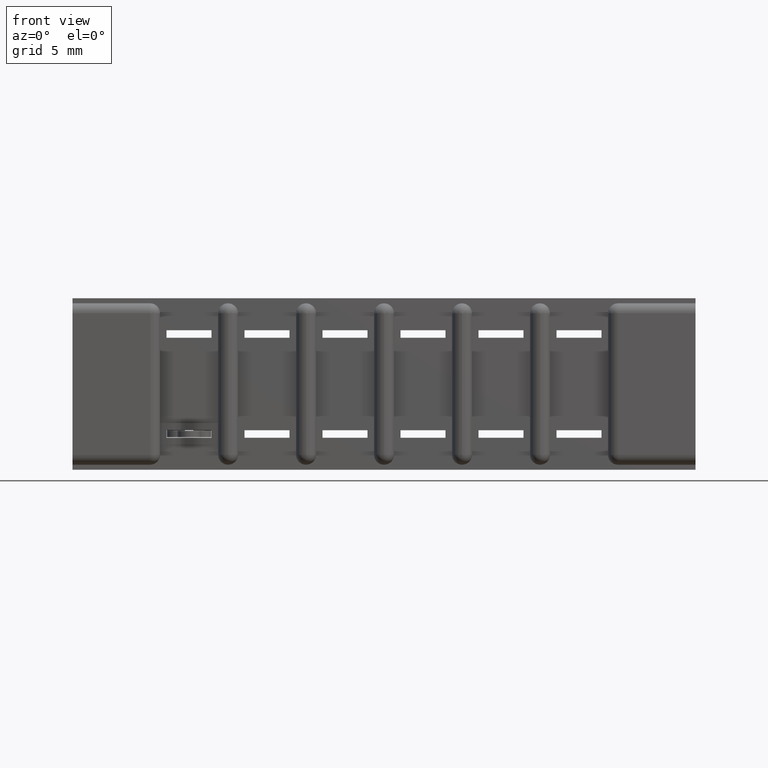
[diagram: clean part render]
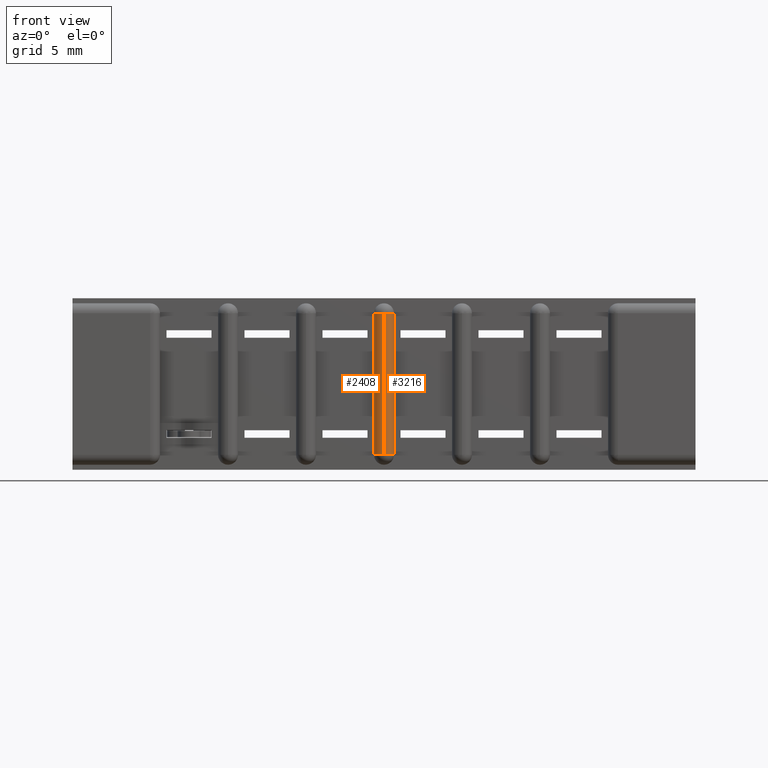
[diagram: same view with one multi-face feature highlighted, each face labeled with its STEP entity id]
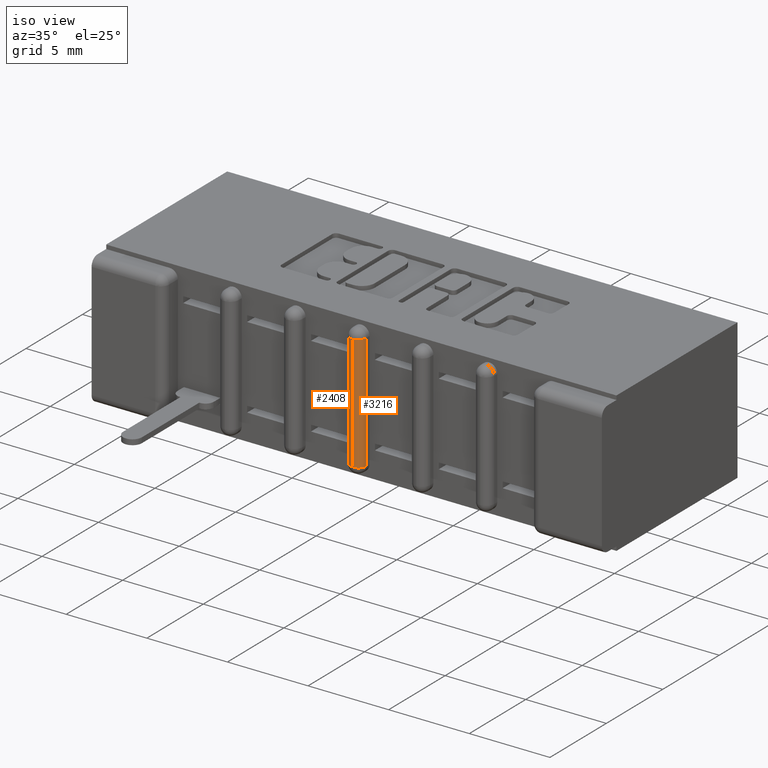
[diagram: same view with one multi-face feature highlighted, each face labeled with its STEP entity id]
A machine part, front view. The highlighted faces form ONE feature: a constant-radius fillet chain: 2 tangent blend faces with common blend radius 0.508 mm. The faces share edges in the B-rep.
A second angle (iso view) of the same feature is appended — it is thin or edge-on in the first view.
Their STEP definitions:
[1] entity #3216 (Cylinder):
#420 = DIRECTION ( 'NONE',  ( 1.592914282019978600E-015, 0.0000000000000000000, -1.000000000000000000 ) ) ;
#670 = VECTOR ( 'NONE', #6826, 39.37007874015748100 ) ;
#702 = LINE ( 'NONE', #6165, #670 ) ;
#932 = ORIENTED_EDGE ( 'NONE', *, *, #1616, .F. ) ;
#1269 = CIRCLE ( 'NONE', #7897, 0.02000000000000005900 ) ;
#1438 = CARTESIAN_POINT ( 'NONE',  ( 0.9409999999999997300, 0.04000000000000000100, -0.02999999999999927000 ) ) ;
#1486 = CARTESIAN_POINT ( 'NONE',  ( 0.9210000000000003700, 0.04000000000000000100, -0.3430000000000000300 ) ) ;
#1536 = DIRECTION ( 'NONE',  ( -1.000000000000000000, 0.0000000000000000000, 0.0000000000000000000 ) ) ;
#1547 = VERTEX_POINT ( 'NONE', #1438 ) ;
#1588 = EDGE_CURVE ( 'NONE', #1547, #8727, #1269, .T. ) ;
#1616 = EDGE_CURVE ( 'NONE', #7826, #3146, #5422, .T. ) ;
#1618 = EDGE_CURVE ( 'NONE', #3146, #8727, #3552, .T. ) ;
#2215 = DIRECTION ( 'NONE',  ( -1.592914282019978400E-015, 0.0000000000000000000, 1.000000000000000000 ) ) ;
#2715 = CARTESIAN_POINT ( 'NONE',  ( 0.9209999999999998200, 0.02000000000000000000, -0.02999999999999927000 ) ) ;
#2760 = ORIENTED_EDGE ( 'NONE', *, *, #8967, .F. ) ;
#2923 = DIRECTION ( 'NONE',  ( -1.000000000000000000, 0.0000000000000000000, -1.707404996040159400E-015 ) ) ;
#3146 = VERTEX_POINT ( 'NONE', #3375 ) ;
#3216 = ADVANCED_FACE ( 'NONE', ( #5830 ), #5715, .T. ) ;
#3375 = CARTESIAN_POINT ( 'NONE',  ( 0.9210000000000006000, 0.02000000000000000000, -0.3130000000000006700 ) ) ;
#3407 = CARTESIAN_POINT ( 'NONE',  ( 0.9209999999999990400, 0.04000000000000000100, -0.02999999999999930500 ) ) ;
#3432 = DIRECTION ( 'NONE',  ( 1.707404996040159200E-015, 6.996556369206972900E-029, -1.000000000000000000 ) ) ;
#3552 = LINE ( 'NONE', #2715, #3627 ) ;
#3627 = VECTOR ( 'NONE', #2215, 39.37007874015748100 ) ;
#4406 = CARTESIAN_POINT ( 'NONE',  ( 0.9410000000000002800, 0.04000000000000000100, -0.3130000000000007200 ) ) ;
#4485 = CARTESIAN_POINT ( 'NONE',  ( 0.9210000000000003700, 0.04000000000000000100, -0.3130000000000007200 ) ) ;
#4794 = ORIENTED_EDGE ( 'NONE', *, *, #1588, .T. ) ;
#4891 = EDGE_LOOP ( 'NONE', ( #932, #2760, #4794, #7305 ) ) ;
#5422 = CIRCLE ( 'NONE', #7868, 0.02000000000000005900 ) ;
#5635 = DIRECTION ( 'NONE',  ( 0.0000000000000000000, -0.0000000000000000000, -1.000000000000000000 ) ) ;
#5715 = CYLINDRICAL_SURFACE ( 'NONE', #7772, 0.02000000000000005900 ) ;
#5830 = FACE_OUTER_BOUND ( 'NONE', #4891, .T. ) ;
#5869 = DIRECTION ( 'NONE',  ( -1.000000000000000000, 0.0000000000000000000, 0.0000000000000000000 ) ) ;
#6165 = CARTESIAN_POINT ( 'NONE',  ( 0.9410000000000003900, 0.04000000000000000100, -0.3130000000000007200 ) ) ;
#6826 = DIRECTION ( 'NONE',  ( 1.592914282019978400E-015, -0.0000000000000000000, -1.000000000000000000 ) ) ;
#7305 = ORIENTED_EDGE ( 'NONE', *, *, #1618, .F. ) ;
#7739 = CARTESIAN_POINT ( 'NONE',  ( 0.9210000000000000400, 0.02000000000000000000, -0.02999999999999923200 ) ) ;
#7772 = AXIS2_PLACEMENT_3D ( 'NONE', #1486, #420, #1536 ) ;
#7826 = VERTEX_POINT ( 'NONE', #4406 ) ;
#7868 = AXIS2_PLACEMENT_3D ( 'NONE', #4485, #5635, #5869 ) ;
#7897 = AXIS2_PLACEMENT_3D ( 'NONE', #3407, #3432, #2923 ) ;
#8727 = VERTEX_POINT ( 'NONE', #7739 ) ;
#8967 = EDGE_CURVE ( 'NONE', #1547, #7826, #702, .T. ) ;
[2] entity #2408 (Cylinder):
#236 = CARTESIAN_POINT ( 'NONE',  ( 0.9210000000000006000, 0.04000000000000000100, -0.3130000000000007200 ) ) ;
#633 = EDGE_LOOP ( 'NONE', ( #2963, #2559, #3260, #961 ) ) ;
#706 = VECTOR ( 'NONE', #6291, 39.37007874015748100 ) ;
#730 = LINE ( 'NONE', #6558, #706 ) ;
#961 = ORIENTED_EDGE ( 'NONE', *, *, #1618, .T. ) ;
#1604 = EDGE_CURVE ( 'NONE', #8727, #3873, #8764, .T. ) ;
#1618 = EDGE_CURVE ( 'NONE', #3146, #8727, #3552, .T. ) ;
#1631 = EDGE_CURVE ( 'NONE', #7327, #3146, #3636, .T. ) ;
#1687 = CARTESIAN_POINT ( 'NONE',  ( 0.9009999999999999100, 0.04000000000000000100, -0.02999999999999927000 ) ) ;
#2215 = DIRECTION ( 'NONE',  ( -1.592914282019978400E-015, 0.0000000000000000000, 1.000000000000000000 ) ) ;
#2408 = ADVANCED_FACE ( 'NONE', ( #7821 ), #6458, .T. ) ;
#2559 = ORIENTED_EDGE ( 'NONE', *, *, #4686, .F. ) ;
#2715 = CARTESIAN_POINT ( 'NONE',  ( 0.9209999999999998200, 0.02000000000000000000, -0.02999999999999927000 ) ) ;
#2963 = ORIENTED_EDGE ( 'NONE', *, *, #1604, .T. ) ;
#3146 = VERTEX_POINT ( 'NONE', #3375 ) ;
#3260 = ORIENTED_EDGE ( 'NONE', *, *, #1631, .T. ) ;
#3375 = CARTESIAN_POINT ( 'NONE',  ( 0.9210000000000006000, 0.02000000000000000000, -0.3130000000000006700 ) ) ;
#3552 = LINE ( 'NONE', #2715, #3627 ) ;
#3627 = VECTOR ( 'NONE', #2215, 39.37007874015748100 ) ;
#3636 = CIRCLE ( 'NONE', #8003, 0.02000000000000005900 ) ;
#3873 = VERTEX_POINT ( 'NONE', #1687 ) ;
#4305 = DIRECTION ( 'NONE',  ( 1.000000000000000000, 0.0000000000000000000, 0.0000000000000000000 ) ) ;
#4425 = AXIS2_PLACEMENT_3D ( 'NONE', #9090, #8892, #9109 ) ;
#4525 = DIRECTION ( 'NONE',  ( -1.707404996040229400E-015, -0.0000000000000000000, -1.000000000000000000 ) ) ;
#4529 = CARTESIAN_POINT ( 'NONE',  ( 0.9209999999999998200, 0.04000000000000000100, -0.02999999999999930500 ) ) ;
#4532 = DIRECTION ( 'NONE',  ( -1.000000000000000000, 0.0000000000000000000, 1.707404996040159400E-015 ) ) ;
#4686 = EDGE_CURVE ( 'NONE', #7327, #3873, #730, .T. ) ;
#6291 = DIRECTION ( 'NONE',  ( -1.991142852524973500E-015, -0.0000000000000000000, 1.000000000000000000 ) ) ;
#6458 = CYLINDRICAL_SURFACE ( 'NONE', #4425, 0.02000000000000005900 ) ;
#6558 = CARTESIAN_POINT ( 'NONE',  ( 0.9009999999999999100, 0.04000000000000000100, -0.02999999999999930800 ) ) ;
#7177 = DIRECTION ( 'NONE',  ( 0.0000000000000000000, 0.0000000000000000000, 1.000000000000000000 ) ) ;
#7327 = VERTEX_POINT ( 'NONE', #8572 ) ;
#7739 = CARTESIAN_POINT ( 'NONE',  ( 0.9210000000000000400, 0.02000000000000000000, -0.02999999999999923200 ) ) ;
#7821 = FACE_OUTER_BOUND ( 'NONE', #633, .T. ) ;
#7855 = AXIS2_PLACEMENT_3D ( 'NONE', #4529, #4525, #4532 ) ;
#8003 = AXIS2_PLACEMENT_3D ( 'NONE', #236, #7177, #4305 ) ;
#8572 = CARTESIAN_POINT ( 'NONE',  ( 0.9010000000000004700, 0.04000000000000000100, -0.3130000000000007200 ) ) ;
#8727 = VERTEX_POINT ( 'NONE', #7739 ) ;
#8764 = CIRCLE ( 'NONE', #7855, 0.02000000000000005900 ) ;
#8892 = DIRECTION ( 'NONE',  ( -1.991142852524973500E-015, 0.0000000000000000000, 1.000000000000000000 ) ) ;
#9090 = CARTESIAN_POINT ( 'NONE',  ( 0.9210000000000006000, 0.04000000000000000100, -0.3430000000000000800 ) ) ;
#9109 = DIRECTION ( 'NONE',  ( 1.000000000000000000, 0.0000000000000000000, 3.414809992080318900E-015 ) ) ;